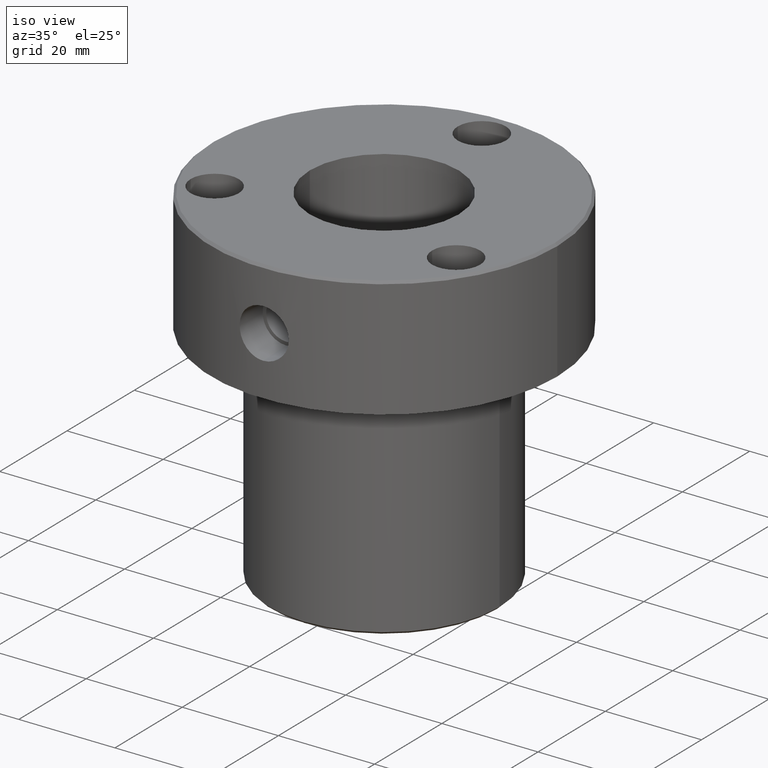
[diagram: clean part render]
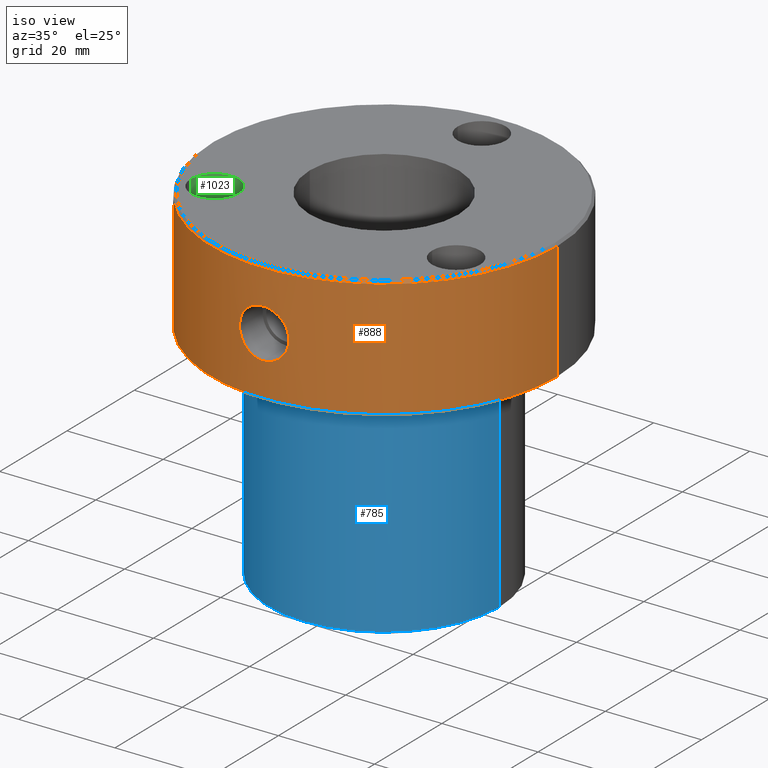
[diagram: same view with three faces highlighted in distinct colors, each labeled with its STEP entity id]
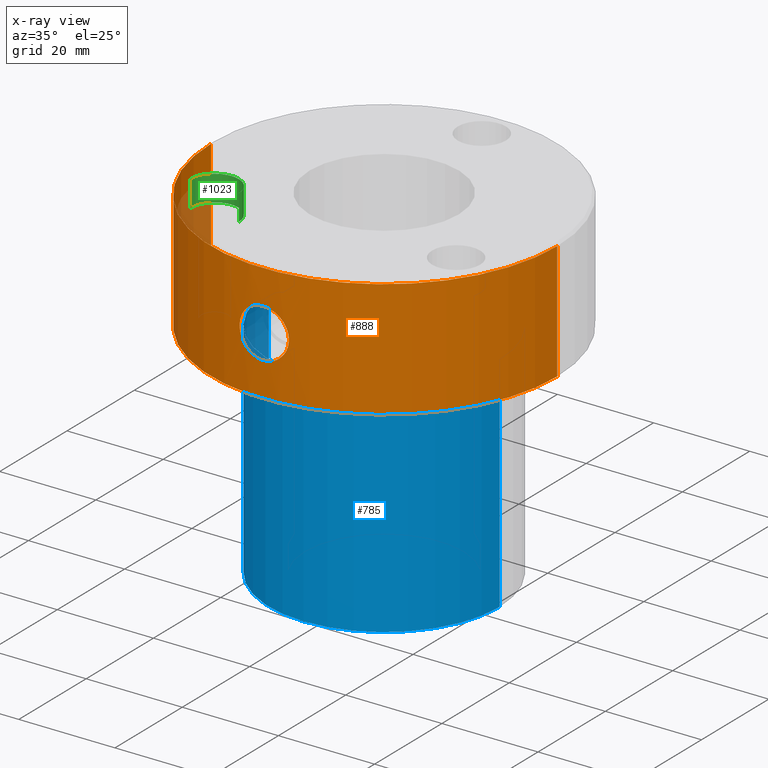
[diagram: x-ray of the same camera — body ghosted, the three highlighted faces saturated]
A machine part, iso view with three faces highlighted in distinct colors.
The next image is the same camera in x-ray (body ghosted, the three faces saturated) — at least one of them is partly hidden behind the body in this view.
Their STEP definitions:

[orange] entity #888 — the highlighted cylindrical surface (partial cylindrical patch) has radius 36 mm, axis along (-0, -0, 1).
#3 = ORIENTED_EDGE ( 'NONE', *, *, #359, .T. ) ;
#5 = CARTESIAN_POINT ( 'NONE',  ( -3.869813446050350159, -35.79220196518004826, -9.354639173738936719 ) ) ;
#12 = CARTESIAN_POINT ( 'NONE',  ( -5.100166516558003238, -35.63695738235751520, -13.41789004543118402 ) ) ;
#16 = VECTOR ( 'NONE', #64, 1000.000000000000000 ) ;
#20 = CARTESIAN_POINT ( 'NONE',  ( -0.3361067275072111560, -36.00000000000001421, -7.606626999999983596 ) ) ;
#25 = VERTEX_POINT ( 'NONE', #763 ) ;
#39 = CARTESIAN_POINT ( 'NONE',  ( -0.1675429042383714540, -36.00000000000000711, -17.89337299999999331 ) ) ;
#41 = CARTESIAN_POINT ( 'NONE',  ( 0.3363308217378480625, -36.00000000000000000, -7.606626999999984484 ) ) ;
#51 = DIRECTION ( 'NONE',  ( 0.000000000000000000, 0.000000000000000000, -1.000000000000000000 ) ) ;
#52 = LINE ( 'NONE', #150, #16 ) ;
#64 = DIRECTION ( 'NONE',  ( -0.000000000000000000, -0.000000000000000000, 1.000000000000000000 ) ) ;
#77 = CARTESIAN_POINT ( 'NONE',  ( 0.000000000000000000, 0.000000000000000000, -24.99999999999999289 ) ) ;
#85 = CARTESIAN_POINT ( 'NONE',  ( 3.135146423121419890, -35.86431980584649892, -16.83614949334460675 ) ) ;
#92 = CARTESIAN_POINT ( 'NONE',  ( 36.00000000000000000, 0.000000000000000000, -24.99999999999999289 ) ) ;
#99 = CARTESIAN_POINT ( 'NONE',  ( -2.577004002287619056, -35.90872625943177354, -8.289395687327473894 ) ) ;
#100 = ORIENTED_EDGE ( 'NONE', *, *, #670, .T. ) ;
#103 = CARTESIAN_POINT ( 'NONE',  ( 4.454688299235059823, -35.72381133161002964, -15.32627421644871468 ) ) ;
#105 = CARTESIAN_POINT ( 'NONE',  ( -1.334472260636662133, -35.97676177568234124, -7.772172400854750585 ) ) ;
#110 = ORIENTED_EDGE ( 'NONE', *, *, #511, .F. ) ;
#117 = CARTESIAN_POINT ( 'NONE',  ( -4.615790708340534287, -35.70309573215841681, -15.02364172483657256 ) ) ;
#140 = CARTESIAN_POINT ( 'NONE',  ( 1.331207150646882331, -35.97574184921764129, -7.779769563068786198 ) ) ;
#150 = CARTESIAN_POINT ( 'NONE',  ( 36.00000000000000000, 0.000000000000000000, 0.000000000000000000 ) ) ;
#203 = CARTESIAN_POINT ( 'NONE',  ( 0.3353092220245999511, -35.99999999999999289, -17.89337299999998621 ) ) ;
#247 = CARTESIAN_POINT ( 'NONE',  ( -3.132516396897012001, -35.86453791635487676, -16.83802151031922989 ) ) ;
#256 = VERTEX_POINT ( 'NONE', #726 ) ;
#269 = CARTESIAN_POINT ( 'NONE',  ( 4.612450577060112522, -35.70353312065206097, -15.03093629859708713 ) ) ;
#279 = CARTESIAN_POINT ( 'NONE',  ( -5.124100043890623013, -35.63346569493480587, -12.41299369725978963 ) ) ;
#281 = CARTESIAN_POINT ( 'NONE',  ( 4.455019366375490897, -35.72377563291573921, -10.17406853261149990 ) ) ;
#296 = CARTESIAN_POINT ( 'NONE',  ( 4.175012378777728905, -35.75721056505209106, -9.753807887219853257 ) ) ;
#304 = CARTESIAN_POINT ( 'NONE',  ( 3.134851411221557971, -35.86436338319735029, -8.663408683850164493 ) ) ;
#321 = CARTESIAN_POINT ( 'NONE',  ( 3.571817028434180789E-21, -36.00000000000000000, -17.89337299999998621 ) ) ;
#323 = CARTESIAN_POINT ( 'NONE',  ( 1.654126241111264051, -35.96234114261679338, -7.878137646354945289 ) ) ;
#325 = CARTESIAN_POINT ( 'NONE',  ( -2.576638186247376172, -35.90875484596557499, -17.21084344985863979 ) ) ;
#359 = EDGE_CURVE ( 'NONE', #484, #1194, #716, .T. ) ;
#377 = CARTESIAN_POINT ( 'NONE',  ( -3.867744682383481347, -35.79242907306673516, -16.14777688475753337 ) ) ;
#380 = CARTESIAN_POINT ( 'NONE',  ( 2.272818404094694156, -35.92849133234913239, -17.36465140196043677 ) ) ;
#383 = VERTEX_POINT ( 'NONE', #1013 ) ;
#386 = ORIENTED_EDGE ( 'NONE', *, *, #1143, .T. ) ;
#392 = CARTESIAN_POINT ( 'NONE',  ( -4.081358766602609656, -35.76838717605889428, -9.613498045051994012 ) ) ;
#403 = EDGE_LOOP ( 'NONE', ( #949, #110 ) ) ;
#405 = CARTESIAN_POINT ( 'NONE',  ( -2.279323674699770486, -35.92913036428053886, -8.129239255269382625 ) ) ;
#414 = CARTESIAN_POINT ( 'NONE',  ( -2.275587720639904443, -35.92934925681800706, -17.37244262154168339 ) ) ;
#422 = CARTESIAN_POINT ( 'NONE',  ( 1.165764879794188413, -35.98150000286027250, -7.738214538170568702 ) ) ;
#430 = CARTESIAN_POINT ( 'NONE',  ( -0.8401113678963481046, -35.99057497138012707, -17.82680413233868322 ) ) ;
#464 = CARTESIAN_POINT ( 'NONE',  ( 1.335832289506346138, -35.97675110359922712, -17.72775875594555117 ) ) ;
#469 = CARTESIAN_POINT ( 'NONE',  ( 3.867194275753138122, -35.79247892995611835, -16.14821262891811671 ) ) ;
#482 = CARTESIAN_POINT ( 'NONE',  ( -3.394016580218661261, -35.84044962157522463, -8.877090623383150358 ) ) ;
#484 = VERTEX_POINT ( 'NONE', #1056 ) ;
#486 = CARTESIAN_POINT ( 'NONE',  ( 1.657239417139547255, -35.96316859498720220, -17.62941402757830645 ) ) ;
#490 = CARTESIAN_POINT ( 'NONE',  ( -5.132480326373275226, -35.63225569218960942, -13.08318454073698511 ) ) ;
#499 = CARTESIAN_POINT ( 'NONE',  ( 3.393533373212614723, -35.84048388370862881, -8.876894584173426139 ) ) ;
#504 = CARTESIAN_POINT ( 'NONE',  ( 2.571459298321395526, -35.90915553629102419, -8.285819686161667974 ) ) ;
#506 = FACE_OUTER_BOUND ( 'NONE', #1229, .T. ) ;
#511 = EDGE_CURVE ( 'NONE', #900, #25, #1232, .T. ) ;
#516 = AXIS2_PLACEMENT_3D ( 'NONE', #77, #842, #748 ) ;
#559 = CARTESIAN_POINT ( 'NONE',  ( 0.6695539294417952592, -35.99531588153639916, -17.86076756866215121 ) ) ;
#564 = CARTESIAN_POINT ( 'NONE',  ( 2.121153321150935245, -35.93778920659239873, -17.43656400794046490 ) ) ;
#580 = CARTESIAN_POINT ( 'NONE',  ( 2.570089392832816344, -35.90845072443985941, -17.20524208273297617 ) ) ;
#583 = CARTESIAN_POINT ( 'NONE',  ( -5.091049653408040498, -35.63820270606292695, -12.07721189375376447 ) ) ;
#586 = CARTESIAN_POINT ( 'NONE',  ( 4.073750510498462596, -35.76892631714162718, -9.616935401809428186 ) ) ;
#590 = CARTESIAN_POINT ( 'NONE',  ( 1.812095684196976642, -35.95469751019649607, -7.934954253576164795 ) ) ;
#591 = CARTESIAN_POINT ( 'NONE',  ( 6.298815282759539701E-16, -36.00000000000000000, -7.606626999999987149 ) ) ;
#592 = CARTESIAN_POINT ( 'NONE',  ( -4.870985339044030304, -35.66917535561609043, -14.40470360826312657 ) ) ;
#605 = CARTESIAN_POINT ( 'NONE',  ( 0.000000000000000000, 0.000000000000000000, 0.000000000000000000 ) ) ;
#606 = CARTESIAN_POINT ( 'NONE',  ( -0.6715231242244814602, -35.99412889237471092, -17.85196652225037539 ) ) ;
#612 = CYLINDRICAL_SURFACE ( 'NONE', #1040, 36.00000000000000000 ) ;
#621 = CARTESIAN_POINT ( 'NONE',  ( 0.000000000000000000, 0.000000000000000000, -0.4999999999999796274 ) ) ;
#649 = CARTESIAN_POINT ( 'NONE',  ( 4.968640645482770068, -35.65553174595231667, -14.08157981711600470 ) ) ;
#652 = DIRECTION ( 'NONE',  ( -0.000000000000000000, -0.000000000000000000, 1.000000000000000000 ) ) ;
#662 = CARTESIAN_POINT ( 'NONE',  ( -3.390904222931096612, -35.84074771024629769, -16.62568980151061382 ) ) ;
#665 = CARTESIAN_POINT ( 'NONE',  ( 3.860273976072881918, -35.79259445657086758, -9.356314350695761561 ) ) ;
#670 = EDGE_CURVE ( 'NONE', #1194, #383, #52, .T. ) ;
#678 = CARTESIAN_POINT ( 'NONE',  ( -4.967239168825848594, -35.65572824311934852, -11.41264983495981333 ) ) ;
#679 = AXIS2_PLACEMENT_3D ( 'NONE', #621, #51, #923 ) ;
#685 = CARTESIAN_POINT ( 'NONE',  ( -4.613851569483705894, -35.70334822312924672, -10.47230001879731631 ) ) ;
#690 = CARTESIAN_POINT ( 'NONE',  ( -4.968358492892852141, -35.65557240957834750, -14.08375826072354720 ) ) ;
#694 = EDGE_CURVE ( 'NONE', #484, #256, #905, .T. ) ;
#716 = CIRCLE ( 'NONE', #516, 36.00000000000000000 ) ;
#726 = CARTESIAN_POINT ( 'NONE',  ( -36.00000000000000000, 4.408728476930470856E-15, -0.4999999999999796274 ) ) ;
#740 = CARTESIAN_POINT ( 'NONE',  ( -36.00000000000000000, 4.408728476930470856E-15, 0.000000000000000000 ) ) ;
#748 = DIRECTION ( 'NONE',  ( 1.000000000000000000, 0.000000000000000000, 0.000000000000000000 ) ) ;
#758 = CARTESIAN_POINT ( 'NONE',  ( 4.968518926129060098, -35.65554893085495536, -11.41781017927310771 ) ) ;
#761 = CARTESIAN_POINT ( 'NONE',  ( -0.6768412377640536937, -35.99513981105601346, -7.640486352620248667 ) ) ;
#763 = CARTESIAN_POINT ( 'NONE',  ( 3.571817028434180789E-21, -36.00000000000000000, -17.89337299999998621 ) ) ;
#782 = CARTESIAN_POINT ( 'NONE',  ( -4.870061513962859578, -35.66930335032450472, -11.09241811007563072 ) ) ;
#842 = DIRECTION ( 'NONE',  ( -0.000000000000000000, -0.000000000000000000, 1.000000000000000000 ) ) ;
#847 = CARTESIAN_POINT ( 'NONE',  ( -4.456035437276217870, -35.72365000573475413, -15.32423349465898177 ) ) ;
#850 = CARTESIAN_POINT ( 'NONE',  ( 5.132256074719487415, -35.63228799270495273, -12.40988469272170569 ) ) ;
#858 = CARTESIAN_POINT ( 'NONE',  ( 5.099012622426519314, -35.63712115515072298, -13.42446733174833362 ) ) ;
#865 = CARTESIAN_POINT ( 'NONE',  ( 5.132468915830044054, -35.63225733572879506, -13.08687422678917933 ) ) ;
#869 = CARTESIAN_POINT ( 'NONE',  ( 6.298815282759539701E-16, -36.00000000000000000, -7.606626999999987149 ) ) ;
#877 = CARTESIAN_POINT ( 'NONE',  ( 2.275809720756746035, -35.92932709345632247, -8.127738614779113746 ) ) ;
#879 = CARTESIAN_POINT ( 'NONE',  ( -1.655426372826040105, -35.96325904331931156, -17.63009013256227320 ) ) ;
#882 = DIRECTION ( 'NONE',  ( -0.000000000000000000, -0.000000000000000000, 1.000000000000000000 ) ) ;
#888 = ADVANCED_FACE ( 'NONE', ( #506, #1095 ), #612, .T. ) ;
#900 = VERTEX_POINT ( 'NONE', #591 ) ;
#905 = LINE ( 'NONE', #740, #1203 ) ;
#923 = DIRECTION ( 'NONE',  ( 1.000000000000000000, 0.000000000000000000, 0.000000000000000000 ) ) ;
#940 = CARTESIAN_POINT ( 'NONE',  ( 4.612444849566888827, -35.70353119707042566, -10.46937732415865874 ) ) ;
#949 = ORIENTED_EDGE ( 'NONE', *, *, #1221, .F. ) ;
#962 = CARTESIAN_POINT ( 'NONE',  ( 2.715994306536742897, -35.89767429074579752, -17.11743241194078635 ) ) ;
#964 = CARTESIAN_POINT ( 'NONE',  ( -5.132303483038378467, -35.63228116415699986, -12.58068670786477483 ) ) ;
#971 = CARTESIAN_POINT ( 'NONE',  ( 6.298815282759539701E-16, -36.00000000000000000, -7.606626999999987149 ) ) ;
#973 = CARTESIAN_POINT ( 'NONE',  ( 0.6698195256892720550, -35.99528778390568107, -7.639439484074522113 ) ) ;
#978 = CARTESIAN_POINT ( 'NONE',  ( -3.132282132631538207, -35.86455603857671548, -8.661827584422121973 ) ) ;
#1013 = CARTESIAN_POINT ( 'NONE',  ( 36.00000000000000000, 0.000000000000000000, -0.4999999999999796274 ) ) ;
#1032 = B_SPLINE_CURVE_WITH_KNOTS ( 'NONE', 3,
 ( #1131, #203, #559, #464, #486, #564, #380, #580, #962, #85, #1053, #469, #1058, #103, #269, #1234, #649, #858, #865, #850, #1249, #758, #1148, #940, #281, #296, #586, #665, #1042, #499, #304, #504, #877, #590, #323, #140, #422, #973, #41, #869 ),
 .UNSPECIFIED., .F., .F.,
 ( 4, 2, 2, 2, 2, 2, 2, 2, 2, 2, 2, 2, 2, 2, 2, 2, 2, 2, 2, 4 ),
 ( 0.004144744938621530879, 0.005150239399073153028, 0.006155733859524775177, 0.006658481089750586251, 0.007161228319976396459, 0.008166722780428018608, 0.009172217240879639022, 0.01017771170133125944, 0.01118320616178287812, 0.01218870062223450026, 0.01319419508268611721, 0.01419968954313774109, 0.01520518400358935804, 0.01570793123381516998, 0.01621067846404098539, 0.01721617292449261274, 0.01822166738494424357, 0.01872441461517005898, 0.01922716184539587439, 0.02023265630584750174 ),
 .UNSPECIFIED. ) ;
#1040 = AXIS2_PLACEMENT_3D ( 'NONE', #605, #882, #1078 ) ;
#1042 = CARTESIAN_POINT ( 'NONE',  ( 3.747803063487487041, -35.80458155935752984, -9.232037138303441637 ) ) ;
#1053 = CARTESIAN_POINT ( 'NONE',  ( 3.393221447277317893, -35.84051879824716025, -16.62348283471833454 ) ) ;
#1056 = CARTESIAN_POINT ( 'NONE',  ( -36.00000000000000000, 4.408728476930470856E-15, -24.99999999999999289 ) ) ;
#1058 = CARTESIAN_POINT ( 'NONE',  ( 4.083460599242995315, -35.76814635166661560, -15.88375512178560456 ) ) ;
#1064 = CARTESIAN_POINT ( 'NONE',  ( -5.066001198085445800, -35.64178358665389368, -11.90850973993781992 ) ) ;
#1078 = DIRECTION ( 'NONE',  ( 1.000000000000000000, 0.000000000000000000, 0.000000000000000000 ) ) ;
#1095 = FACE_BOUND ( 'NONE', #403, .T. ) ;
#1131 = CARTESIAN_POINT ( 'NONE',  ( 3.571817028434180789E-21, -36.00000000000000000, -17.89337299999998621 ) ) ;
#1138 = ORIENTED_EDGE ( 'NONE', *, *, #694, .F. ) ;
#1143 = EDGE_CURVE ( 'NONE', #383, #256, #1224, .T. ) ;
#1148 = CARTESIAN_POINT ( 'NONE',  ( 4.869320642961361578, -35.66940571283051753, -11.09014689618406635 ) ) ;
#1152 = CARTESIAN_POINT ( 'NONE',  ( -1.655037379787138496, -35.96329484931852960, -7.869619187362687285 ) ) ;
#1159 = CARTESIAN_POINT ( 'NONE',  ( -4.452942759247334514, -35.72402988663296242, -10.17069915215211573 ) ) ;
#1175 = CARTESIAN_POINT ( 'NONE',  ( -0.3353535181282963351, -35.99883048162996602, -17.88517202957152108 ) ) ;
#1185 = CARTESIAN_POINT ( 'NONE',  ( -1.335362368965270274, -35.97674113740099955, -17.72768090413853415 ) ) ;
#1194 = VERTEX_POINT ( 'NONE', #92 ) ;
#1203 = VECTOR ( 'NONE', #652, 1000.000000000000000 ) ;
#1221 = EDGE_CURVE ( 'NONE', #25, #900, #1032, .T. ) ;
#1224 = CIRCLE ( 'NONE', #679, 36.00000000000000000 ) ;
#1229 = EDGE_LOOP ( 'NONE', ( #1138, #3, #100, #386 ) ) ;
#1232 = B_SPLINE_CURVE_WITH_KNOTS ( 'NONE', 3,
 ( #971, #20, #761, #105, #1152, #405, #99, #978, #482, #5, #392, #1159, #685, #782, #678, #1064, #583, #279, #964, #490, #12, #690, #592, #117, #847, #1243, #377, #662, #247, #325, #414, #879, #1185, #430, #606, #1175, #39, #321 ),
 .UNSPECIFIED., .F., .F.,
 ( 4, 2, 2, 2, 2, 2, 2, 2, 2, 2, 2, 2, 2, 2, 2, 2, 2, 2, 4 ),
 ( 0.02023265630584750174, 0.02123748081429662621, 0.02224230532274575414, 0.02324712983119488208, 0.02425195433964400654, 0.02525677884809313448, 0.02626160335654226241, 0.02726642786499138688, 0.02776884011921594911, 0.02827125237344051134, 0.02927607688188963581, 0.03028090139033876027, 0.03128572589878789167, 0.03229055040723700920, 0.03329537491568613367, 0.03430019942413525813, 0.03530502393258437566, 0.03580743618680894136, 0.03630984844103350012 ),
 .UNSPECIFIED. ) ;
#1234 = CARTESIAN_POINT ( 'NONE',  ( 4.870776703703421973, -35.66920957809382742, -14.40600504608524979 ) ) ;
#1243 = CARTESIAN_POINT ( 'NONE',  ( -4.082279283164364614, -35.76828787354437367, -15.88554681719237038 ) ) ;
#1249 = CARTESIAN_POINT ( 'NONE',  ( 5.099130274031547394, -35.63710454467858568, -12.07612216934112404 ) ) ;

[blue] entity #785 — the highlighted cylindrical surface (partial cylindrical patch) has radius 24 mm, axis along (-0, -0, 1).
#24 = CARTESIAN_POINT ( 'NONE',  ( 24.00000000000000000, 0.000000000000000000, -24.99999999999999289 ) ) ;
#68 = DIRECTION ( 'NONE',  ( -0.000000000000000000, -0.000000000000000000, 1.000000000000000000 ) ) ;
#130 = EDGE_CURVE ( 'NONE', #449, #554, #331, .T. ) ;
#134 = AXIS2_PLACEMENT_3D ( 'NONE', #208, #985, #691 ) ;
#185 = ORIENTED_EDGE ( 'NONE', *, *, #130, .F. ) ;
#200 = EDGE_CURVE ( 'NONE', #483, #554, #928, .T. ) ;
#208 = CARTESIAN_POINT ( 'NONE',  ( 0.000000000000000000, 0.000000000000000000, -24.99999999999999289 ) ) ;
#252 = CARTESIAN_POINT ( 'NONE',  ( 0.000000000000000000, 0.000000000000000000, -71.50000000000000000 ) ) ;
#308 = CARTESIAN_POINT ( 'NONE',  ( 24.00000000000000000, 0.000000000000000000, -71.50000000000000000 ) ) ;
#331 = CIRCLE ( 'NONE', #134, 24.00000000000000000 ) ;
#333 = CIRCLE ( 'NONE', #976, 24.00000000000000000 ) ;
#352 = FACE_OUTER_BOUND ( 'NONE', #488, .T. ) ;
#363 = CARTESIAN_POINT ( 'NONE',  ( -24.00000000000000000, 2.939152317953647894E-15, -71.50000000000000000 ) ) ;
#382 = EDGE_CURVE ( 'NONE', #806, #483, #333, .T. ) ;
#390 = ORIENTED_EDGE ( 'NONE', *, *, #1068, .F. ) ;
#437 = CYLINDRICAL_SURFACE ( 'NONE', #997, 24.00000000000000000 ) ;
#449 = VERTEX_POINT ( 'NONE', #867 ) ;
#483 = VERTEX_POINT ( 'NONE', #308 ) ;
#488 = EDGE_LOOP ( 'NONE', ( #390, #965, #1163, #185 ) ) ;
#554 = VERTEX_POINT ( 'NONE', #24 ) ;
#561 = DIRECTION ( 'NONE',  ( -0.000000000000000000, -0.000000000000000000, 1.000000000000000000 ) ) ;
#627 = DIRECTION ( 'NONE',  ( -1.000000000000000000, 0.000000000000000000, 0.000000000000000000 ) ) ;
#691 = DIRECTION ( 'NONE',  ( 1.000000000000000000, 0.000000000000000000, 0.000000000000000000 ) ) ;
#728 = LINE ( 'NONE', #1027, #1137 ) ;
#785 = ADVANCED_FACE ( 'NONE', ( #352 ), #437, .T. ) ;
#806 = VERTEX_POINT ( 'NONE', #363 ) ;
#812 = DIRECTION ( 'NONE',  ( -0.000000000000000000, -0.000000000000000000, 1.000000000000000000 ) ) ;
#867 = CARTESIAN_POINT ( 'NONE',  ( -24.00000000000000000, 2.939152317953647894E-15, -24.99999999999999289 ) ) ;
#928 = LINE ( 'NONE', #1025, #994 ) ;
#965 = ORIENTED_EDGE ( 'NONE', *, *, #382, .T. ) ;
#976 = AXIS2_PLACEMENT_3D ( 'NONE', #252, #561, #627 ) ;
#985 = DIRECTION ( 'NONE',  ( -0.000000000000000000, -0.000000000000000000, 1.000000000000000000 ) ) ;
#994 = VECTOR ( 'NONE', #1213, 1000.000000000000000 ) ;
#997 = AXIS2_PLACEMENT_3D ( 'NONE', #1132, #68, #1114 ) ;
#1025 = CARTESIAN_POINT ( 'NONE',  ( 24.00000000000000000, 0.000000000000000000, 0.000000000000000000 ) ) ;
#1027 = CARTESIAN_POINT ( 'NONE',  ( -24.00000000000000000, 2.939152317953647894E-15, 0.000000000000000000 ) ) ;
#1068 = EDGE_CURVE ( 'NONE', #806, #449, #728, .T. ) ;
#1114 = DIRECTION ( 'NONE',  ( 1.000000000000000000, 0.000000000000000000, 0.000000000000000000 ) ) ;
#1132 = CARTESIAN_POINT ( 'NONE',  ( 0.000000000000000000, 0.000000000000000000, 0.000000000000000000 ) ) ;
#1137 = VECTOR ( 'NONE', #812, 1000.000000000000000 ) ;
#1163 = ORIENTED_EDGE ( 'NONE', *, *, #200, .T. ) ;
#1213 = DIRECTION ( 'NONE',  ( -0.000000000000000000, -0.000000000000000000, 1.000000000000000000 ) ) ;

[green] entity #1023 — the highlighted cylindrical surface (edge-blend (fillet) strip) has radius 5 mm, axis along (-0, -0, 1).
#37 = VECTOR ( 'NONE', #462, 1000.000000000000000 ) ;
#107 = EDGE_LOOP ( 'NONE', ( #650, #552, #423, #939 ) ) ;
#139 = DIRECTION ( 'NONE',  ( -0.000000000000000000, -0.000000000000000000, 1.000000000000000000 ) ) ;
#146 = DIRECTION ( 'NONE',  ( -0.000000000000000000, -0.000000000000000000, 1.000000000000000000 ) ) ;
#153 = CARTESIAN_POINT ( 'NONE',  ( -20.11473670974875461, -14.49999999999994316, 0.000000000000000000 ) ) ;
#161 = VERTEX_POINT ( 'NONE', #991 ) ;
#164 = LINE ( 'NONE', #153, #37 ) ;
#168 = LINE ( 'NONE', #551, #417 ) ;
#173 = AXIS2_PLACEMENT_3D ( 'NONE', #266, #146, #935 ) ;
#181 = VERTEX_POINT ( 'NONE', #868 ) ;
#266 = CARTESIAN_POINT ( 'NONE',  ( -25.11473670974875105, -14.49999999999994316, 0.000000000000000000 ) ) ;
#312 = CARTESIAN_POINT ( 'NONE',  ( -20.11473670974875461, -14.49999999999994316, -5.400000000000000355 ) ) ;
#340 = EDGE_CURVE ( 'NONE', #934, #181, #164, .T. ) ;
#350 = FACE_OUTER_BOUND ( 'NONE', #107, .T. ) ;
#353 = CIRCLE ( 'NONE', #173, 5.000000000000000888 ) ;
#417 = VECTOR ( 'NONE', #903, 1000.000000000000000 ) ;
#421 = CARTESIAN_POINT ( 'NONE',  ( -25.11473670974875105, -14.49999999999994316, -5.400000000000000355 ) ) ;
#423 = ORIENTED_EDGE ( 'NONE', *, *, #340, .T. ) ;
#434 = CYLINDRICAL_SURFACE ( 'NONE', #1247, 4.999999999999997335 ) ;
#440 = DIRECTION ( 'NONE',  ( -0.000000000000000000, -0.000000000000000000, 1.000000000000000000 ) ) ;
#460 = DIRECTION ( 'NONE',  ( 1.000000000000000000, 0.000000000000000000, 0.000000000000000000 ) ) ;
#462 = DIRECTION ( 'NONE',  ( -0.000000000000000000, -0.000000000000000000, 1.000000000000000000 ) ) ;
#502 = DIRECTION ( 'NONE',  ( 1.000000000000000000, 0.000000000000000000, 0.000000000000000000 ) ) ;
#551 = CARTESIAN_POINT ( 'NONE',  ( -30.11473670974874750, -14.49999999999994316, 0.000000000000000000 ) ) ;
#552 = ORIENTED_EDGE ( 'NONE', *, *, #581, .F. ) ;
#581 = EDGE_CURVE ( 'NONE', #934, #1162, #772, .T. ) ;
#650 = ORIENTED_EDGE ( 'NONE', *, *, #1107, .F. ) ;
#731 = EDGE_CURVE ( 'NONE', #181, #161, #353, .T. ) ;
#745 = CARTESIAN_POINT ( 'NONE',  ( -30.11473670974874750, -14.49999999999994316, -5.400000000000000355 ) ) ;
#772 = CIRCLE ( 'NONE', #830, 4.999999999999997335 ) ;
#830 = AXIS2_PLACEMENT_3D ( 'NONE', #421, #139, #502 ) ;
#831 = CARTESIAN_POINT ( 'NONE',  ( -25.11473670974875105, -14.49999999999994316, 0.000000000000000000 ) ) ;
#868 = CARTESIAN_POINT ( 'NONE',  ( -20.11473670974875105, -14.49999999999994316, 0.000000000000000000 ) ) ;
#903 = DIRECTION ( 'NONE',  ( -0.000000000000000000, -0.000000000000000000, 1.000000000000000000 ) ) ;
#934 = VERTEX_POINT ( 'NONE', #312 ) ;
#935 = DIRECTION ( 'NONE',  ( 1.000000000000000000, 0.000000000000000000, 0.000000000000000000 ) ) ;
#939 = ORIENTED_EDGE ( 'NONE', *, *, #731, .T. ) ;
#991 = CARTESIAN_POINT ( 'NONE',  ( -30.11473670974875105, -14.49999999999994316, 0.000000000000000000 ) ) ;
#1023 = ADVANCED_FACE ( 'NONE', ( #350 ), #434, .F. ) ;
#1107 = EDGE_CURVE ( 'NONE', #1162, #161, #168, .T. ) ;
#1162 = VERTEX_POINT ( 'NONE', #745 ) ;
#1247 = AXIS2_PLACEMENT_3D ( 'NONE', #831, #440, #460 ) ;